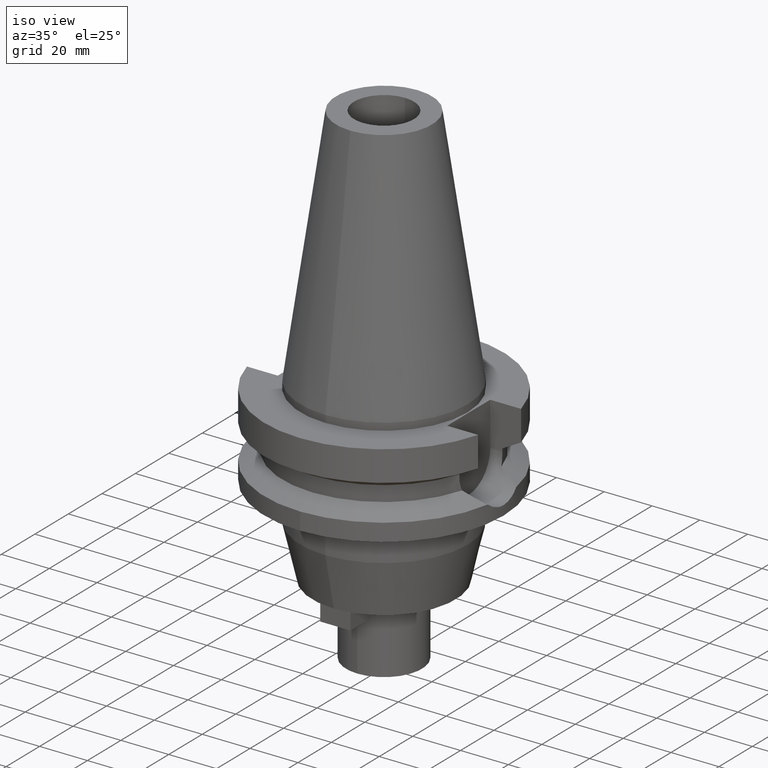
[diagram: clean part render]
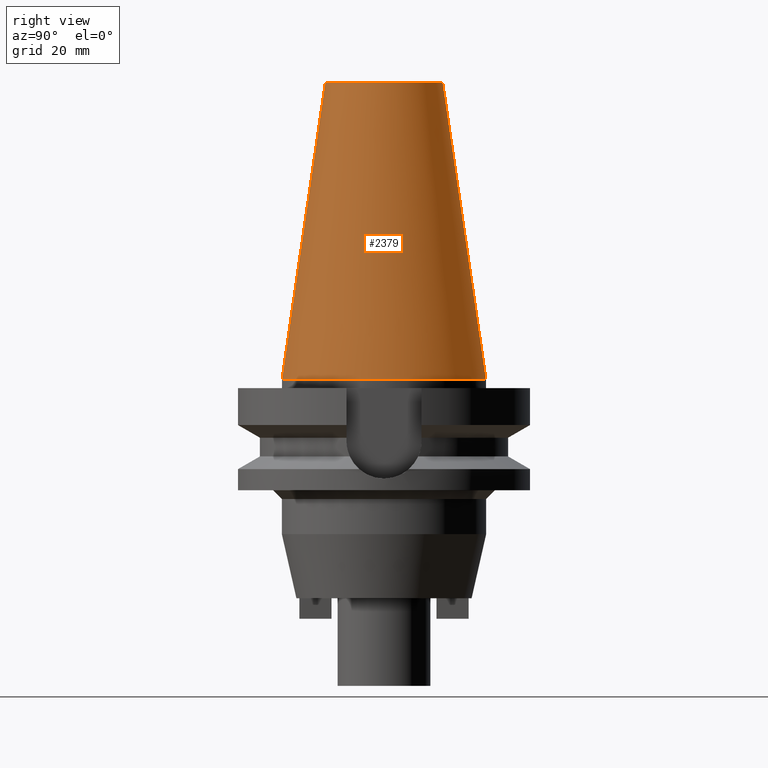
[diagram: tour spotlight — one face highlighted and labeled with its STEP entity id]
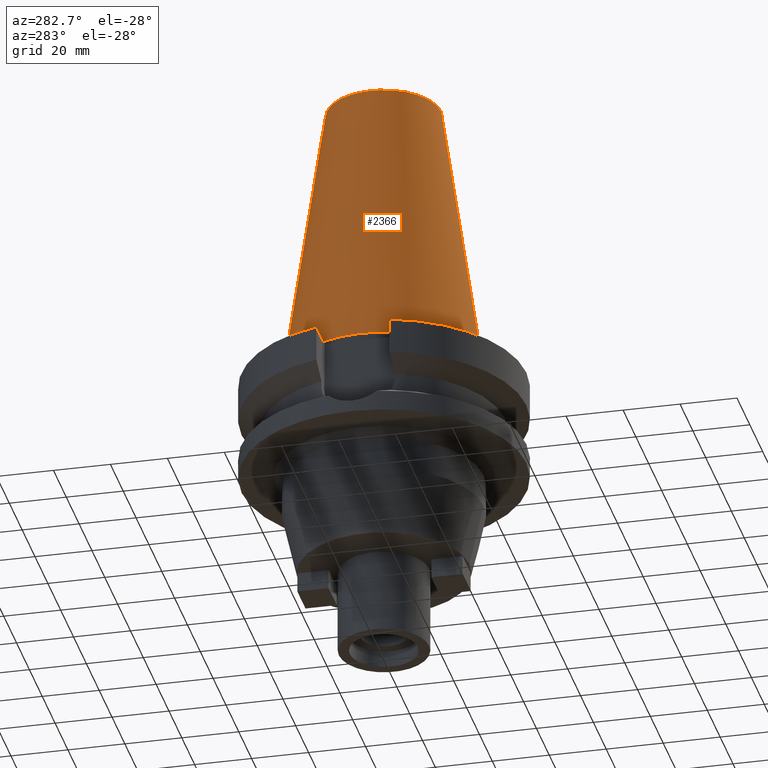
[diagram: tour spotlight — one face highlighted and labeled with its STEP entity id]
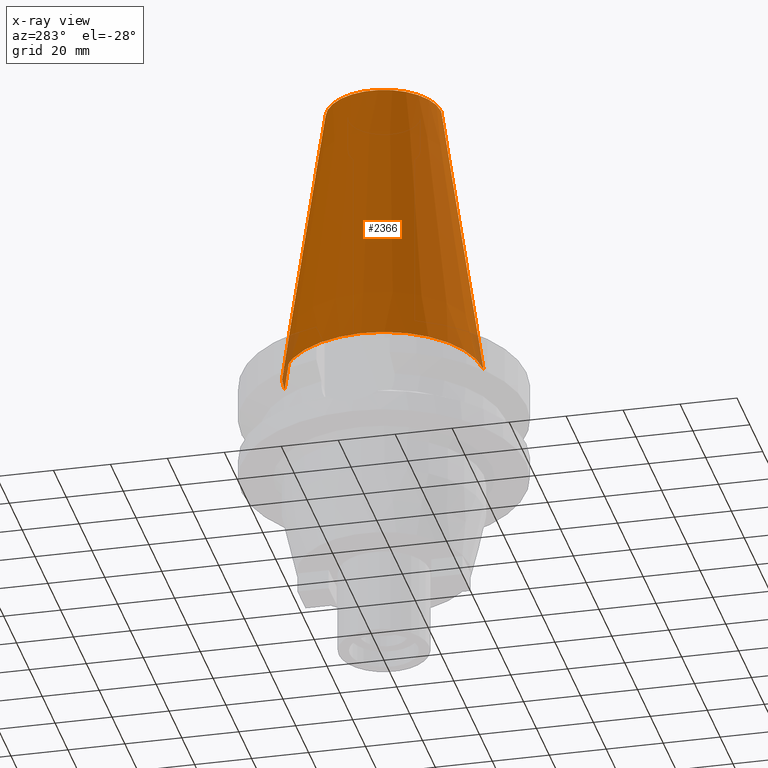
[diagram: x-ray of the same camera — body ghosted, this tour face saturated]
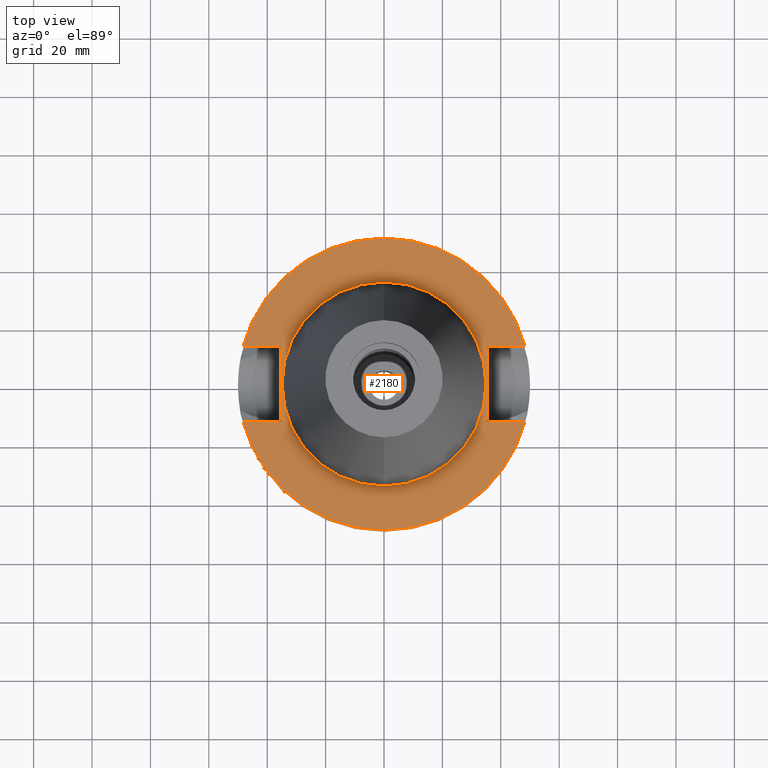
[diagram: tour spotlight — one face highlighted and labeled with its STEP entity id]
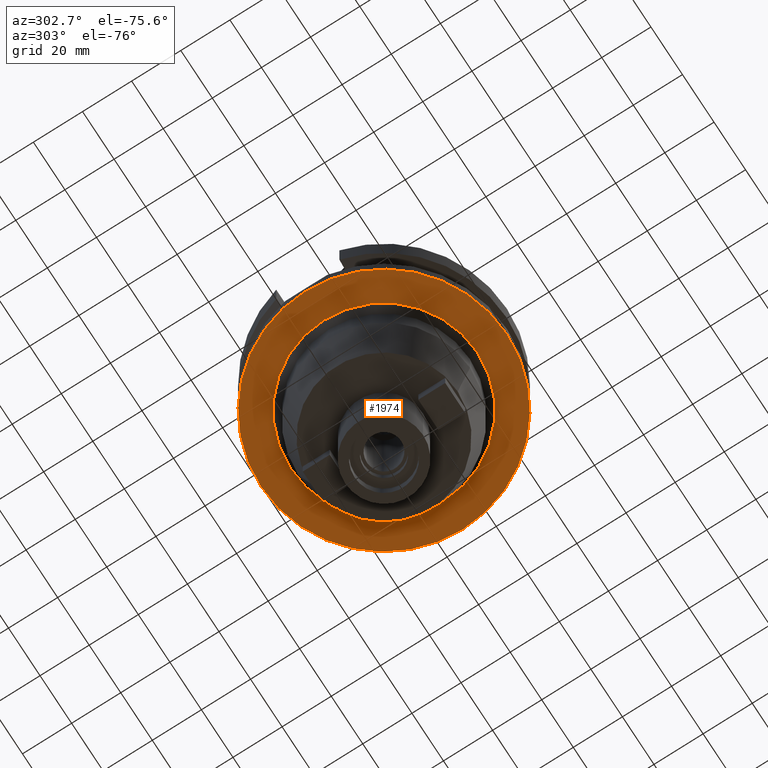
[diagram: tour spotlight — one face highlighted and labeled with its STEP entity id]
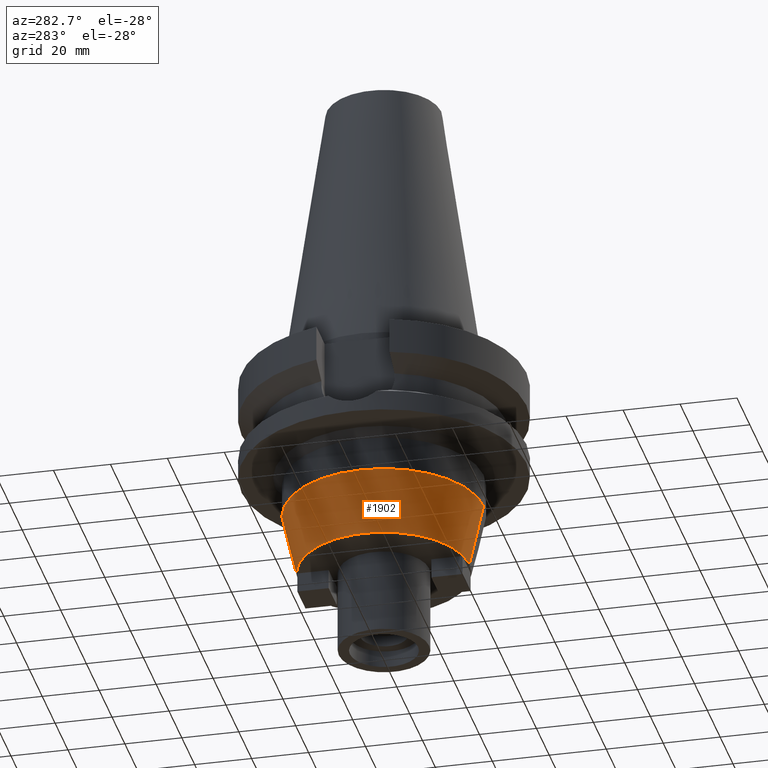
[diagram: tour spotlight — one face highlighted and labeled with its STEP entity id]
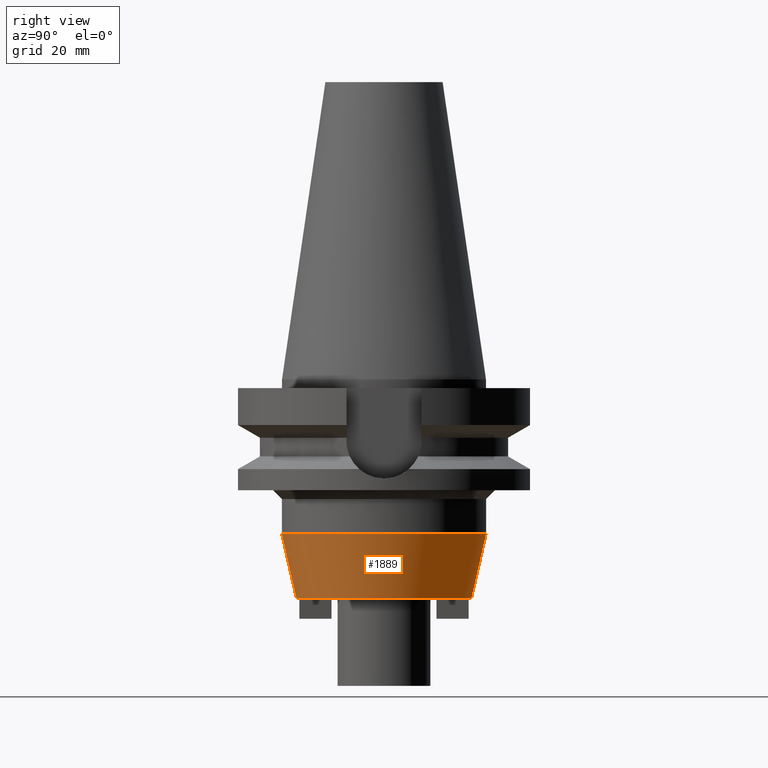
[diagram: tour spotlight — one face highlighted and labeled with its STEP entity id]
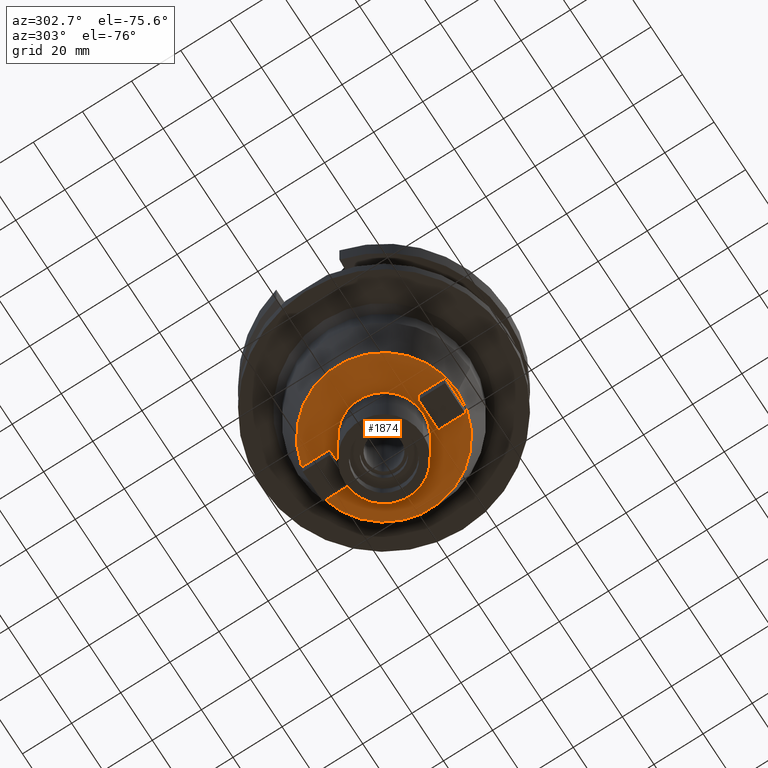
[diagram: tour spotlight — one face highlighted and labeled with its STEP entity id]
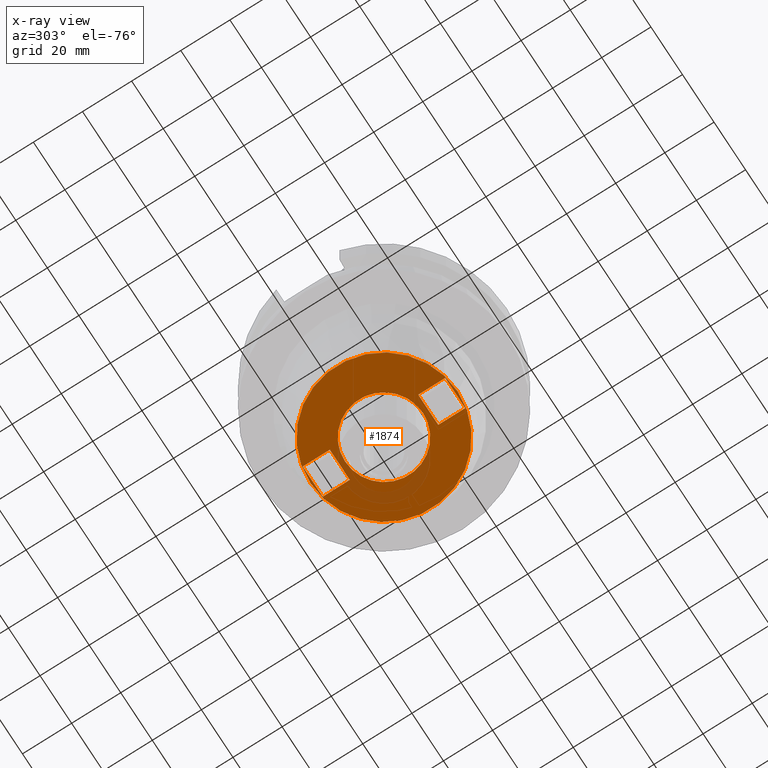
[diagram: x-ray of the same camera — body ghosted, this tour face saturated]
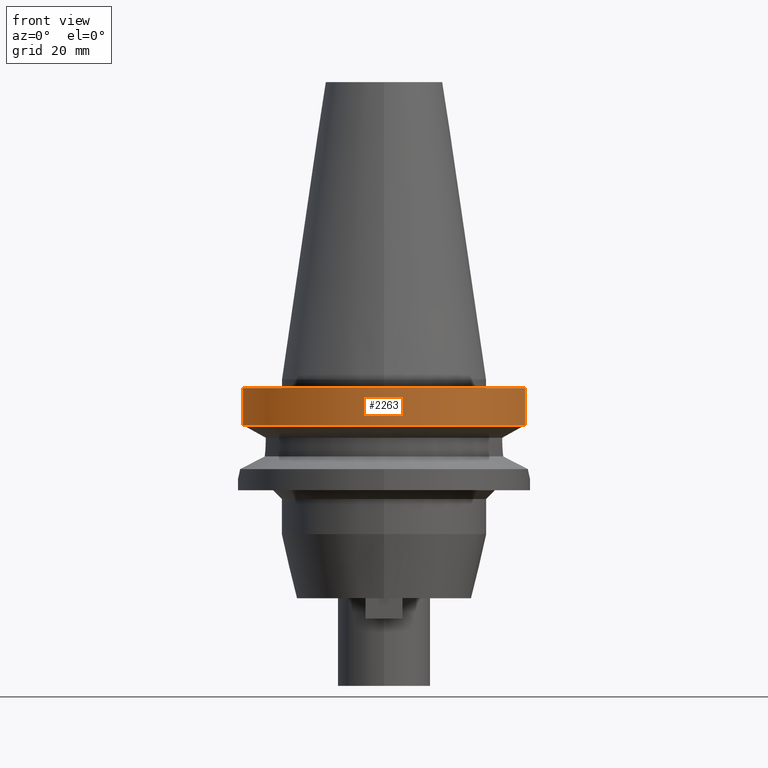
[diagram: tour spotlight — one face highlighted and labeled with its STEP entity id]
A machine part: a face-by-face anatomy tour. The part has 66 B-rep faces; the first image is the clean iso view, then the 8 largest visible faces are spotlighted one at a time (largest first), each with its STEP entity span.

Face 1 — right view, entity #2379. In plain terms, the highlighted conical surface has half-angle 8.297 deg.
Definition (entity closure, byte-faithful):
#1082=DIRECTION('',(0.E0,-1.443043893539E-1,-9.895333461856E-1));
#1083=VECTOR('',#1082,1.028767755957E2);
#1084=CARTESIAN_POINT('',(0.E0,-2.007942971896E1,1.018E2));
#1085=LINE('',#1084,#1083);
#1097=DIRECTION('',(0.E0,1.443043893539E-1,-9.895333461856E-1));
#1098=VECTOR('',#1097,1.028767755957E2);
#1099=CARTESIAN_POINT('',(0.E0,2.007942971896E1,1.018E2));
#1100=LINE('',#1099,#1098);
#1104=CARTESIAN_POINT('',(0.E0,0.E0,-5.115907697473E-13));
#1105=DIRECTION('',(0.E0,0.E0,-1.E0));
#1106=DIRECTION('',(0.E0,1.E0,0.E0));
#1107=AXIS2_PLACEMENT_3D('',#1104,#1105,#1106);
#1120=CARTESIAN_POINT('',(0.E0,0.E0,1.018E2));
#1121=DIRECTION('',(0.E0,0.E0,-1.E0));
#1122=DIRECTION('',(0.E0,1.E0,0.E0));
#1123=AXIS2_PLACEMENT_3D('',#1120,#1121,#1122);
#1457=CARTESIAN_POINT('',(0.E0,3.4925E1,-4.263256414561E-13));
#1458=VERTEX_POINT('',#1457);
#1459=CARTESIAN_POINT('',(0.E0,-3.4925E1,-4.263256414561E-13));
#1460=VERTEX_POINT('',#1459);
#1461=CARTESIAN_POINT('',(0.E0,2.007942971896E1,1.018E2));
#1462=VERTEX_POINT('',#1461);
#1463=CARTESIAN_POINT('',(0.E0,-2.007942971896E1,1.018E2));
#1464=VERTEX_POINT('',#1463);
#2367=CARTESIAN_POINT('',(0.E0,0.E0,5.09E1));
#2368=DIRECTION('',(0.E0,0.E0,-1.E0));
#2369=DIRECTION('',(0.E0,-1.E0,0.E0));
#2370=AXIS2_PLACEMENT_3D('',#2367,#2368,#2369);
#2371=CONICAL_SURFACE('',#2370,2.750221485948E1,8.297E0);
#2372=ORIENTED_EDGE('',*,*,#2357,.T.);
#2373=ORIENTED_EDGE('',*,*,#2334,.T.);
#2374=ORIENTED_EDGE('',*,*,#2361,.F.);
#2376=ORIENTED_EDGE('',*,*,#2375,.F.);
#2377=EDGE_LOOP('',(#2372,#2373,#2374,#2376));
#2378=FACE_OUTER_BOUND('',#2377,.F.);
#1108=CIRCLE('',#1107,3.4925E1);
#1124=CIRCLE('',#1123,2.007942971896E1);
#2334=EDGE_CURVE('',#1458,#1460,#1108,.T.);
#2357=EDGE_CURVE('',#1462,#1458,#1100,.T.);
#2361=EDGE_CURVE('',#1464,#1460,#1085,.T.);
#2375=EDGE_CURVE('',#1462,#1464,#1124,.T.);
#2379=ADVANCED_FACE('',(#2378),#2371,.T.);

Face 2 — auxiliary view, entity #2366. An x-ray twin of the same camera follows (body ghosted, this face saturated) — the face is partly hidden behind the body. In plain terms, the highlighted conical surface has half-angle 8.297 deg.
Definition (entity closure, byte-faithful):
#1082=DIRECTION('',(0.E0,-1.443043893539E-1,-9.895333461856E-1));
#1083=VECTOR('',#1082,1.028767755957E2);
#1084=CARTESIAN_POINT('',(0.E0,-2.007942971896E1,1.018E2));
#1085=LINE('',#1084,#1083);
#1089=CARTESIAN_POINT('',(0.E0,0.E0,-5.115907697473E-13));
#1090=DIRECTION('',(0.E0,0.E0,-1.E0));
#1091=DIRECTION('',(0.E0,-1.E0,0.E0));
#1092=AXIS2_PLACEMENT_3D('',#1089,#1090,#1091);
#1097=DIRECTION('',(0.E0,1.443043893539E-1,-9.895333461856E-1));
#1098=VECTOR('',#1097,1.028767755957E2);
#1099=CARTESIAN_POINT('',(0.E0,2.007942971896E1,1.018E2));
#1100=LINE('',#1099,#1098);
#1112=CARTESIAN_POINT('',(0.E0,0.E0,1.018E2));
#1113=DIRECTION('',(0.E0,0.E0,-1.E0));
#1114=DIRECTION('',(0.E0,-1.E0,0.E0));
#1115=AXIS2_PLACEMENT_3D('',#1112,#1113,#1114);
#1457=CARTESIAN_POINT('',(0.E0,3.4925E1,-4.263256414561E-13));
#1458=VERTEX_POINT('',#1457);
#1459=CARTESIAN_POINT('',(0.E0,-3.4925E1,-4.263256414561E-13));
#1460=VERTEX_POINT('',#1459);
#1461=CARTESIAN_POINT('',(0.E0,2.007942971896E1,1.018E2));
#1462=VERTEX_POINT('',#1461);
#1463=CARTESIAN_POINT('',(0.E0,-2.007942971896E1,1.018E2));
#1464=VERTEX_POINT('',#1463);
#2352=CARTESIAN_POINT('',(0.E0,0.E0,5.09E1));
#2353=DIRECTION('',(0.E0,0.E0,-1.E0));
#2354=DIRECTION('',(0.E0,-1.E0,0.E0));
#2355=AXIS2_PLACEMENT_3D('',#2352,#2353,#2354);
#2356=CONICAL_SURFACE('',#2355,2.750221485948E1,8.297E0);
#2358=ORIENTED_EDGE('',*,*,#2357,.F.);
#2360=ORIENTED_EDGE('',*,*,#2359,.F.);
#2362=ORIENTED_EDGE('',*,*,#2361,.T.);
#2363=ORIENTED_EDGE('',*,*,#2345,.T.);
#2364=EDGE_LOOP('',(#2358,#2360,#2362,#2363));
#2365=FACE_OUTER_BOUND('',#2364,.F.);
#1093=CIRCLE('',#1092,3.4925E1);
#1116=CIRCLE('',#1115,2.007942971896E1);
#2345=EDGE_CURVE('',#1460,#1458,#1093,.T.);
#2357=EDGE_CURVE('',#1462,#1458,#1100,.T.);
#2359=EDGE_CURVE('',#1464,#1462,#1116,.T.);
#2361=EDGE_CURVE('',#1464,#1460,#1085,.T.);
#2366=ADVANCED_FACE('',(#2365),#2356,.T.);

Face 3 — top view, entity #2180. In plain terms, the highlighted planar face has unit normal (0, 0, -1).
Definition (entity closure, byte-faithful):
#752=DIRECTION('',(1.E0,0.E0,0.E0));
#753=VECTOR('',#752,1.292057015392E1);
#754=CARTESIAN_POINT('',(3.54E1,1.285E1,-3.E0));
#755=LINE('',#754,#753);
#799=DIRECTION('',(0.E0,1.E0,0.E0));
#800=VECTOR('',#799,2.57E1);
#801=CARTESIAN_POINT('',(-3.54E1,-1.285E1,-3.E0));
#802=LINE('',#801,#800);
#806=DIRECTION('',(-1.E0,0.E0,0.E0));
#807=VECTOR('',#806,1.292057015392E1);
#808=CARTESIAN_POINT('',(-3.54E1,1.285E1,-3.E0));
#809=LINE('',#808,#807);
#813=CARTESIAN_POINT('',(0.E0,1.373318920564E-14,-3.E0));
#814=DIRECTION('',(0.E0,0.E0,-1.E0));
#815=DIRECTION('',(-9.664114030784E-1,2.57E-1,0.E0));
#816=AXIS2_PLACEMENT_3D('',#813,#814,#815);
#821=CARTESIAN_POINT('',(0.E0,1.373318920564E-14,-3.E0));
#822=DIRECTION('',(0.E0,0.E0,-1.E0));
#823=DIRECTION('',(0.E0,1.E0,0.E0));
#824=AXIS2_PLACEMENT_3D('',#821,#822,#823);
#829=DIRECTION('',(0.E0,-1.E0,0.E0));
#830=VECTOR('',#829,2.57E1);
#831=CARTESIAN_POINT('',(3.54E1,1.285E1,-3.E0));
#832=LINE('',#831,#830);
#836=DIRECTION('',(1.E0,0.E0,0.E0));
#837=VECTOR('',#836,1.292057015392E1);
#838=CARTESIAN_POINT('',(3.54E1,-1.285E1,-3.E0));
#839=LINE('',#838,#837);
#843=CARTESIAN_POINT('',(0.E0,1.373318920564E-14,-3.E0));
#844=DIRECTION('',(0.E0,0.E0,-1.E0));
#845=DIRECTION('',(9.664114030784E-1,-2.57E-1,0.E0));
#846=AXIS2_PLACEMENT_3D('',#843,#844,#845);
#851=CARTESIAN_POINT('',(0.E0,1.373318920564E-14,-3.E0));
#852=DIRECTION('',(0.E0,0.E0,-1.E0));
#853=DIRECTION('',(0.E0,-1.E0,0.E0));
#854=AXIS2_PLACEMENT_3D('',#851,#852,#853);
#859=CARTESIAN_POINT('',(0.E0,1.373318920564E-14,-3.E0));
#860=DIRECTION('',(0.E0,0.E0,1.E0));
#861=DIRECTION('',(0.E0,-1.E0,0.E0));
#862=AXIS2_PLACEMENT_3D('',#859,#860,#861);
#867=CARTESIAN_POINT('',(0.E0,1.373318920564E-14,-3.E0));
#868=DIRECTION('',(0.E0,0.E0,1.E0));
#869=DIRECTION('',(0.E0,1.E0,0.E0));
#870=AXIS2_PLACEMENT_3D('',#867,#868,#869);
#905=DIRECTION('',(-1.E0,0.E0,0.E0));
#906=VECTOR('',#905,1.292057015392E1);
#907=CARTESIAN_POINT('',(-3.54E1,-1.285E1,-3.E0));
#908=LINE('',#907,#906);
#1431=CARTESIAN_POINT('',(-3.54E1,-1.285E1,-3.E0));
#1432=VERTEX_POINT('',#1431);
#1433=CARTESIAN_POINT('',(-4.832057015392E1,-1.285E1,-3.E0));
#1434=VERTEX_POINT('',#1433);
#1437=CARTESIAN_POINT('',(-3.54E1,1.285E1,-3.E0));
#1438=VERTEX_POINT('',#1437);
#1439=CARTESIAN_POINT('',(-4.832057015392E1,1.285E1,-3.E0));
#1440=VERTEX_POINT('',#1439);
#1441=CARTESIAN_POINT('',(-1.065814103640E-14,5.E1,-3.E0));
#1442=CARTESIAN_POINT('',(4.832057015392E1,1.285E1,-3.E0));
#1443=VERTEX_POINT('',#1441);
#1444=VERTEX_POINT('',#1442);
#1445=CARTESIAN_POINT('',(3.54E1,1.285E1,-3.E0));
#1446=VERTEX_POINT('',#1445);
#1447=CARTESIAN_POINT('',(3.54E1,-1.285E1,-3.E0));
#1448=VERTEX_POINT('',#1447);
#1449=CARTESIAN_POINT('',(4.832057015392E1,-1.285E1,-3.E0));
#1450=VERTEX_POINT('',#1449);
#1451=CARTESIAN_POINT('',(1.065814103640E-14,-5.E1,-3.E0));
#1452=VERTEX_POINT('',#1451);
#1453=CARTESIAN_POINT('',(0.E0,-3.4925E1,-3.E0));
#1454=CARTESIAN_POINT('',(0.E0,3.4925E1,-3.E0));
#1455=VERTEX_POINT('',#1453);
#1456=VERTEX_POINT('',#1454);
#2149=CARTESIAN_POINT('',(0.E0,0.E0,-3.E0));
#2150=DIRECTION('',(0.E0,0.E0,-1.E0));
#2151=DIRECTION('',(0.E0,-1.E0,0.E0));
#2152=AXIS2_PLACEMENT_3D('',#2149,#2150,#2151);
#2153=PLANE('',#2152);
#2155=ORIENTED_EDGE('',*,*,#2154,.T.);
#2157=ORIENTED_EDGE('',*,*,#2156,.T.);
#2159=ORIENTED_EDGE('',*,*,#2158,.T.);
#2161=ORIENTED_EDGE('',*,*,#2160,.T.);
#2162=ORIENTED_EDGE('',*,*,#2125,.F.);
#2163=ORIENTED_EDGE('',*,*,#2139,.T.);
#2165=ORIENTED_EDGE('',*,*,#2164,.T.);
#2167=ORIENTED_EDGE('',*,*,#2166,.T.);
#2169=ORIENTED_EDGE('',*,*,#2168,.T.);
#2171=ORIENTED_EDGE('',*,*,#2170,.F.);
#2172=EDGE_LOOP('',(#2155,#2157,#2159,#2161,#2162,#2163,#2165,#2167,#2169,
#2171));
#2173=FACE_OUTER_BOUND('',#2172,.F.);
#2175=ORIENTED_EDGE('',*,*,#2174,.T.);
#2177=ORIENTED_EDGE('',*,*,#2176,.T.);
#2178=EDGE_LOOP('',(#2175,#2177));
#2179=FACE_BOUND('',#2178,.F.);
#817=CIRCLE('',#816,5.E1);
#825=CIRCLE('',#824,5.E1);
#847=CIRCLE('',#846,5.E1);
#855=CIRCLE('',#854,5.E1);
#863=CIRCLE('',#862,3.4925E1);
#871=CIRCLE('',#870,3.4925E1);
#2125=EDGE_CURVE('',#1446,#1444,#755,.T.);
#2139=EDGE_CURVE('',#1446,#1448,#832,.T.);
#2154=EDGE_CURVE('',#1432,#1438,#802,.T.);
#2156=EDGE_CURVE('',#1438,#1440,#809,.T.);
#2158=EDGE_CURVE('',#1440,#1443,#817,.T.);
#2160=EDGE_CURVE('',#1443,#1444,#825,.T.);
#2164=EDGE_CURVE('',#1448,#1450,#839,.T.);
#2166=EDGE_CURVE('',#1450,#1452,#847,.T.);
#2168=EDGE_CURVE('',#1452,#1434,#855,.T.);
#2170=EDGE_CURVE('',#1432,#1434,#908,.T.);
#2174=EDGE_CURVE('',#1455,#1456,#863,.T.);
#2176=EDGE_CURVE('',#1456,#1455,#871,.T.);
#2180=ADVANCED_FACE('',(#2173,#2179),#2153,.F.);

Face 4 — auxiliary view, entity #1974. In plain terms, the highlighted planar face has unit normal (0, 0, -1).
Definition (entity closure, byte-faithful):
#502=CARTESIAN_POINT('',(0.E0,1.373318920564E-14,-3.8E1));
#503=DIRECTION('',(0.E0,0.E0,1.E0));
#504=DIRECTION('',(0.E0,-1.E0,0.E0));
#505=AXIS2_PLACEMENT_3D('',#502,#503,#504);
#510=CARTESIAN_POINT('',(0.E0,1.373318920564E-14,-3.8E1));
#511=DIRECTION('',(0.E0,0.E0,1.E0));
#512=DIRECTION('',(0.E0,1.E0,0.E0));
#513=AXIS2_PLACEMENT_3D('',#510,#511,#512);
#518=CARTESIAN_POINT('',(0.E0,0.E0,-3.8E1));
#519=DIRECTION('',(0.E0,0.E0,-1.E0));
#520=DIRECTION('',(0.E0,-1.E0,0.E0));
#521=AXIS2_PLACEMENT_3D('',#518,#519,#520);
#526=CARTESIAN_POINT('',(0.E0,0.E0,-3.8E1));
#527=DIRECTION('',(0.E0,0.E0,-1.E0));
#528=DIRECTION('',(0.E0,1.E0,0.E0));
#529=AXIS2_PLACEMENT_3D('',#526,#527,#528);
#1376=CARTESIAN_POINT('',(0.E0,3.8E1,-3.8E1));
#1377=VERTEX_POINT('',#1376);
#1378=CARTESIAN_POINT('',(0.E0,-3.8E1,-3.8E1));
#1379=VERTEX_POINT('',#1378);
#1380=CARTESIAN_POINT('',(0.E0,-5.E1,-3.8E1));
#1381=CARTESIAN_POINT('',(0.E0,5.E1,-3.8E1));
#1382=VERTEX_POINT('',#1380);
#1383=VERTEX_POINT('',#1381);
#1959=CARTESIAN_POINT('',(0.E0,0.E0,-3.8E1));
#1960=DIRECTION('',(0.E0,0.E0,-1.E0));
#1961=DIRECTION('',(0.E0,-1.E0,0.E0));
#1962=AXIS2_PLACEMENT_3D('',#1959,#1960,#1961);
#1963=PLANE('',#1962);
#1965=ORIENTED_EDGE('',*,*,#1964,.T.);
#1967=ORIENTED_EDGE('',*,*,#1966,.T.);
#1968=EDGE_LOOP('',(#1965,#1967));
#1969=FACE_OUTER_BOUND('',#1968,.F.);
#1970=ORIENTED_EDGE('',*,*,#1952,.T.);
#1971=ORIENTED_EDGE('',*,*,#1941,.T.);
#1972=EDGE_LOOP('',(#1970,#1971));
#1973=FACE_BOUND('',#1972,.F.);
#506=CIRCLE('',#505,5.E1);
#514=CIRCLE('',#513,5.E1);
#522=CIRCLE('',#521,3.8E1);
#530=CIRCLE('',#529,3.8E1);
#1941=EDGE_CURVE('',#1377,#1379,#530,.T.);
#1952=EDGE_CURVE('',#1379,#1377,#522,.T.);
#1964=EDGE_CURVE('',#1382,#1383,#506,.T.);
#1966=EDGE_CURVE('',#1383,#1382,#514,.T.);
#1974=ADVANCED_FACE('',(#1969,#1973),#1963,.T.);

Face 5 — auxiliary view, entity #1902. In plain terms, the highlighted conical surface has half-angle 12.804 deg.
Definition (entity closure, byte-faithful):
#376=CARTESIAN_POINT('',(0.E0,0.E0,-7.5E1));
#377=DIRECTION('',(0.E0,0.E0,1.E0));
#378=DIRECTION('',(0.E0,1.E0,0.E0));
#379=AXIS2_PLACEMENT_3D('',#376,#377,#378);
#428=DIRECTION('',(0.E0,-2.216211035890E-1,-9.751328557915E-1));
#429=VECTOR('',#428,2.256102834536E1);
#430=CARTESIAN_POINT('',(0.E0,3.5E1,-5.3E1));
#431=LINE('',#430,#429);
#443=CARTESIAN_POINT('',(0.E0,0.E0,-5.3E1));
#444=DIRECTION('',(0.E0,0.E0,1.E0));
#445=DIRECTION('',(0.E0,1.E0,0.E0));
#446=AXIS2_PLACEMENT_3D('',#443,#444,#445);
#451=DIRECTION('',(0.E0,2.216211035890E-1,-9.751328557915E-1));
#452=VECTOR('',#451,2.256102834536E1);
#453=CARTESIAN_POINT('',(0.E0,-3.5E1,-5.3E1));
#454=LINE('',#453,#452);
#1348=CARTESIAN_POINT('',(0.E0,-3.E1,-7.5E1));
#1349=CARTESIAN_POINT('',(0.E0,3.E1,-7.5E1));
#1350=VERTEX_POINT('',#1348);
#1351=VERTEX_POINT('',#1349);
#1368=CARTESIAN_POINT('',(0.E0,3.5E1,-5.3E1));
#1369=VERTEX_POINT('',#1368);
#1370=CARTESIAN_POINT('',(0.E0,-3.5E1,-5.3E1));
#1371=VERTEX_POINT('',#1370);
#1890=CARTESIAN_POINT('',(0.E0,0.E0,-6.4E1));
#1891=DIRECTION('',(0.E0,0.E0,1.E0));
#1892=DIRECTION('',(0.E0,1.E0,0.E0));
#1893=AXIS2_PLACEMENT_3D('',#1890,#1891,#1892);
#1894=CONICAL_SURFACE('',#1893,3.25E1,1.280426606529E1);
#1895=ORIENTED_EDGE('',*,*,#1880,.F.);
#1897=ORIENTED_EDGE('',*,*,#1896,.T.);
#1898=ORIENTED_EDGE('',*,*,#1883,.T.);
#1899=ORIENTED_EDGE('',*,*,#1846,.F.);
#1900=EDGE_LOOP('',(#1895,#1897,#1898,#1899));
#1901=FACE_OUTER_BOUND('',#1900,.F.);
#380=CIRCLE('',#379,3.E1);
#447=CIRCLE('',#446,3.5E1);
#1846=EDGE_CURVE('',#1351,#1350,#380,.T.);
#1880=EDGE_CURVE('',#1369,#1351,#431,.T.);
#1883=EDGE_CURVE('',#1371,#1350,#454,.T.);
#1896=EDGE_CURVE('',#1369,#1371,#447,.T.);
#1902=ADVANCED_FACE('',(#1901),#1894,.T.);

Face 6 — right view, entity #1889. In plain terms, the highlighted conical surface has half-angle 12.804 deg.
Definition (entity closure, byte-faithful):
#368=CARTESIAN_POINT('',(0.E0,0.E0,-7.5E1));
#369=DIRECTION('',(0.E0,0.E0,1.E0));
#370=DIRECTION('',(0.E0,-1.E0,0.E0));
#371=AXIS2_PLACEMENT_3D('',#368,#369,#370);
#428=DIRECTION('',(0.E0,-2.216211035890E-1,-9.751328557915E-1));
#429=VECTOR('',#428,2.256102834536E1);
#430=CARTESIAN_POINT('',(0.E0,3.5E1,-5.3E1));
#431=LINE('',#430,#429);
#435=CARTESIAN_POINT('',(0.E0,0.E0,-5.3E1));
#436=DIRECTION('',(0.E0,0.E0,1.E0));
#437=DIRECTION('',(0.E0,-1.E0,0.E0));
#438=AXIS2_PLACEMENT_3D('',#435,#436,#437);
#451=DIRECTION('',(0.E0,2.216211035890E-1,-9.751328557915E-1));
#452=VECTOR('',#451,2.256102834536E1);
#453=CARTESIAN_POINT('',(0.E0,-3.5E1,-5.3E1));
#454=LINE('',#453,#452);
#1348=CARTESIAN_POINT('',(0.E0,-3.E1,-7.5E1));
#1349=CARTESIAN_POINT('',(0.E0,3.E1,-7.5E1));
#1350=VERTEX_POINT('',#1348);
#1351=VERTEX_POINT('',#1349);
#1368=CARTESIAN_POINT('',(0.E0,3.5E1,-5.3E1));
#1369=VERTEX_POINT('',#1368);
#1370=CARTESIAN_POINT('',(0.E0,-3.5E1,-5.3E1));
#1371=VERTEX_POINT('',#1370);
#1875=CARTESIAN_POINT('',(0.E0,0.E0,-6.4E1));
#1876=DIRECTION('',(0.E0,0.E0,1.E0));
#1877=DIRECTION('',(0.E0,1.E0,0.E0));
#1878=AXIS2_PLACEMENT_3D('',#1875,#1876,#1877);
#1879=CONICAL_SURFACE('',#1878,3.25E1,1.280426606529E1);
#1881=ORIENTED_EDGE('',*,*,#1880,.T.);
#1882=ORIENTED_EDGE('',*,*,#1844,.F.);
#1884=ORIENTED_EDGE('',*,*,#1883,.F.);
#1886=ORIENTED_EDGE('',*,*,#1885,.T.);
#1887=EDGE_LOOP('',(#1881,#1882,#1884,#1886));
#1888=FACE_OUTER_BOUND('',#1887,.F.);
#372=CIRCLE('',#371,3.E1);
#439=CIRCLE('',#438,3.5E1);
#1844=EDGE_CURVE('',#1350,#1351,#372,.T.);
#1880=EDGE_CURVE('',#1369,#1351,#431,.T.);
#1883=EDGE_CURVE('',#1371,#1350,#454,.T.);
#1885=EDGE_CURVE('',#1371,#1369,#439,.T.);
#1889=ADVANCED_FACE('',(#1888),#1879,.T.);

Face 7 — auxiliary view, entity #1874. An x-ray twin of the same camera follows (body ghosted, this face saturated) — the face is partly hidden behind the body. In plain terms, the highlighted planar face has unit normal (0, 0, -1).
Definition (entity closure, byte-faithful):
#368=CARTESIAN_POINT('',(0.E0,0.E0,-7.5E1));
#369=DIRECTION('',(0.E0,0.E0,1.E0));
#370=DIRECTION('',(0.E0,-1.E0,0.E0));
#371=AXIS2_PLACEMENT_3D('',#368,#369,#370);
#376=CARTESIAN_POINT('',(0.E0,0.E0,-7.5E1));
#377=DIRECTION('',(0.E0,0.E0,1.E0));
#378=DIRECTION('',(0.E0,1.E0,0.E0));
#379=AXIS2_PLACEMENT_3D('',#376,#377,#378);
#384=CARTESIAN_POINT('',(0.E0,1.373318920564E-14,-7.5E1));
#385=DIRECTION('',(0.E0,0.E0,-1.E0));
#386=DIRECTION('',(0.E0,-1.E0,0.E0));
#387=AXIS2_PLACEMENT_3D('',#384,#385,#386);
#392=CARTESIAN_POINT('',(0.E0,1.373318920564E-14,-7.5E1));
#393=DIRECTION('',(0.E0,0.E0,-1.E0));
#394=DIRECTION('',(0.E0,1.E0,0.E0));
#395=AXIS2_PLACEMENT_3D('',#392,#393,#394);
#400=DIRECTION('',(0.E0,1.E0,0.E0));
#401=VECTOR('',#400,1.1E1);
#402=CARTESIAN_POINT('',(-6.35E0,1.8E1,-7.5E1));
#403=LINE('',#402,#401);
#407=DIRECTION('',(-1.E0,0.E0,0.E0));
#408=VECTOR('',#407,1.27E1);
#409=CARTESIAN_POINT('',(6.35E0,1.8E1,-7.5E1));
#410=LINE('',#409,#408);
#414=DIRECTION('',(0.E0,-1.E0,0.E0));
#415=VECTOR('',#414,1.1E1);
#416=CARTESIAN_POINT('',(6.35E0,-1.8E1,-7.5E1));
#417=LINE('',#416,#415);
#421=DIRECTION('',(1.E0,0.E0,0.E0));
#422=VECTOR('',#421,1.27E1);
#423=CARTESIAN_POINT('',(-6.35E0,-1.8E1,-7.5E1));
#424=LINE('',#423,#422);
#1158=DIRECTION('',(0.E0,1.E0,0.E0));
#1159=VECTOR('',#1158,1.1E1);
#1160=CARTESIAN_POINT('',(6.35E0,1.8E1,-7.5E1));
#1161=LINE('',#1160,#1159);
#1186=DIRECTION('',(-1.E0,0.E0,0.E0));
#1187=VECTOR('',#1186,1.27E1);
#1188=CARTESIAN_POINT('',(6.35E0,2.9E1,-7.5E1));
#1189=LINE('',#1188,#1187);
#1228=DIRECTION('',(0.E0,-1.E0,0.E0));
#1229=VECTOR('',#1228,1.1E1);
#1230=CARTESIAN_POINT('',(-6.35E0,-1.8E1,-7.5E1));
#1231=LINE('',#1230,#1229);
#1256=DIRECTION('',(1.E0,0.E0,0.E0));
#1257=VECTOR('',#1256,1.27E1);
#1258=CARTESIAN_POINT('',(-6.35E0,-2.9E1,-7.5E1));
#1259=LINE('',#1258,#1257);
#1344=CARTESIAN_POINT('',(0.E0,1.5875E1,-7.5E1));
#1345=VERTEX_POINT('',#1344);
#1346=CARTESIAN_POINT('',(0.E0,-1.5875E1,-7.5E1));
#1347=VERTEX_POINT('',#1346);
#1348=CARTESIAN_POINT('',(0.E0,-3.E1,-7.5E1));
#1349=CARTESIAN_POINT('',(0.E0,3.E1,-7.5E1));
#1350=VERTEX_POINT('',#1348);
#1351=VERTEX_POINT('',#1349);
#1352=CARTESIAN_POINT('',(-6.35E0,1.8E1,-7.5E1));
#1353=CARTESIAN_POINT('',(-6.35E0,2.9E1,-7.5E1));
#1354=VERTEX_POINT('',#1352);
#1355=VERTEX_POINT('',#1353);
#1356=CARTESIAN_POINT('',(6.35E0,2.9E1,-7.5E1));
#1357=VERTEX_POINT('',#1356);
#1358=CARTESIAN_POINT('',(6.35E0,1.8E1,-7.5E1));
#1359=VERTEX_POINT('',#1358);
#1360=CARTESIAN_POINT('',(6.35E0,-1.8E1,-7.5E1));
#1361=CARTESIAN_POINT('',(6.35E0,-2.9E1,-7.5E1));
#1362=VERTEX_POINT('',#1360);
#1363=VERTEX_POINT('',#1361);
#1364=CARTESIAN_POINT('',(-6.35E0,-2.9E1,-7.5E1));
#1365=VERTEX_POINT('',#1364);
#1366=CARTESIAN_POINT('',(-6.35E0,-1.8E1,-7.5E1));
#1367=VERTEX_POINT('',#1366);
#1839=CARTESIAN_POINT('',(0.E0,0.E0,-7.5E1));
#1840=DIRECTION('',(0.E0,0.E0,-1.E0));
#1841=DIRECTION('',(0.E0,-1.E0,0.E0));
#1842=AXIS2_PLACEMENT_3D('',#1839,#1840,#1841);
#1843=PLANE('',#1842);
#1845=ORIENTED_EDGE('',*,*,#1844,.T.);
#1847=ORIENTED_EDGE('',*,*,#1846,.T.);
#1848=EDGE_LOOP('',(#1845,#1847));
#1849=FACE_OUTER_BOUND('',#1848,.F.);
#1850=ORIENTED_EDGE('',*,*,#1832,.T.);
#1851=ORIENTED_EDGE('',*,*,#1821,.T.);
#1852=EDGE_LOOP('',(#1850,#1851));
#1853=FACE_BOUND('',#1852,.F.);
#1855=ORIENTED_EDGE('',*,*,#1854,.T.);
#1857=ORIENTED_EDGE('',*,*,#1856,.F.);
#1859=ORIENTED_EDGE('',*,*,#1858,.F.);
#1861=ORIENTED_EDGE('',*,*,#1860,.T.);
#1862=EDGE_LOOP('',(#1855,#1857,#1859,#1861));
#1863=FACE_BOUND('',#1862,.F.);
#1865=ORIENTED_EDGE('',*,*,#1864,.T.);
#1867=ORIENTED_EDGE('',*,*,#1866,.F.);
#1869=ORIENTED_EDGE('',*,*,#1868,.F.);
#1871=ORIENTED_EDGE('',*,*,#1870,.T.);
#1872=EDGE_LOOP('',(#1865,#1867,#1869,#1871));
#1873=FACE_BOUND('',#1872,.F.);
#372=CIRCLE('',#371,3.E1);
#380=CIRCLE('',#379,3.E1);
#388=CIRCLE('',#387,1.5875E1);
#396=CIRCLE('',#395,1.5875E1);
#1821=EDGE_CURVE('',#1345,#1347,#396,.T.);
#1832=EDGE_CURVE('',#1347,#1345,#388,.T.);
#1844=EDGE_CURVE('',#1350,#1351,#372,.T.);
#1846=EDGE_CURVE('',#1351,#1350,#380,.T.);
#1854=EDGE_CURVE('',#1354,#1355,#403,.T.);
#1856=EDGE_CURVE('',#1357,#1355,#1189,.T.);
#1858=EDGE_CURVE('',#1359,#1357,#1161,.T.);
#1860=EDGE_CURVE('',#1359,#1354,#410,.T.);
#1864=EDGE_CURVE('',#1362,#1363,#417,.T.);
#1866=EDGE_CURVE('',#1365,#1363,#1259,.T.);
#1868=EDGE_CURVE('',#1367,#1365,#1231,.T.);
#1870=EDGE_CURVE('',#1367,#1362,#424,.T.);
#1874=ADVANCED_FACE('',(#1849,#1853,#1863,#1873),#1843,.T.);

Face 8 — front view, entity #2263. In plain terms, the highlighted cylindrical surface (partial cylindrical patch) has radius 50 mm, axis along (0, 0, -1).
Definition (entity closure, byte-faithful):
#843=CARTESIAN_POINT('',(0.E0,1.373318920564E-14,-3.E0));
#844=DIRECTION('',(0.E0,0.E0,-1.E0));
#845=DIRECTION('',(9.664114030784E-1,-2.57E-1,0.E0));
#846=AXIS2_PLACEMENT_3D('',#843,#844,#845);
#851=CARTESIAN_POINT('',(0.E0,1.373318920564E-14,-3.E0));
#852=DIRECTION('',(0.E0,0.E0,-1.E0));
#853=DIRECTION('',(0.E0,-1.E0,0.E0));
#854=AXIS2_PLACEMENT_3D('',#851,#852,#853);
#956=CARTESIAN_POINT('',(0.E0,0.E0,-1.566269223573E1));
#957=DIRECTION('',(0.E0,0.E0,1.E0));
#958=DIRECTION('',(-9.664114030784E-1,-2.57E-1,0.E0));
#959=AXIS2_PLACEMENT_3D('',#956,#957,#958);
#964=CARTESIAN_POINT('',(0.E0,0.E0,-1.566269223573E1));
#965=DIRECTION('',(0.E0,0.E0,1.E0));
#966=DIRECTION('',(0.E0,-1.E0,0.E0));
#967=AXIS2_PLACEMENT_3D('',#964,#965,#966);
#988=DIRECTION('',(-8.092424482890E-8,3.043037443150E-7,1.E0));
#989=VECTOR('',#988,1.266265771825E1);
#990=CARTESIAN_POINT('',(-4.832056912920E1,-1.285000385329E1,
-1.566265771824E1));
#991=LINE('',#990,#989);
#995=DIRECTION('',(-8.090218160441E-8,-3.042207788417E-7,-1.E0));
#996=VECTOR('',#995,1.266265772766E1);
#997=CARTESIAN_POINT('',(4.832057015392E1,-1.285E1,-3.E0));
#998=LINE('',#997,#996);
#1433=CARTESIAN_POINT('',(-4.832057015392E1,-1.285E1,-3.E0));
#1434=VERTEX_POINT('',#1433);
#1435=CARTESIAN_POINT('',(-4.832056912920E1,-1.285000385329E1,
-1.566265771824E1));
#1436=VERTEX_POINT('',#1435);
#1449=CARTESIAN_POINT('',(4.832057015392E1,-1.285E1,-3.E0));
#1450=VERTEX_POINT('',#1449);
#1451=CARTESIAN_POINT('',(1.065814103640E-14,-5.E1,-3.E0));
#1452=VERTEX_POINT('',#1451);
#1466=CARTESIAN_POINT('',(0.E0,-5.E1,-1.566269223573E1));
#1467=CARTESIAN_POINT('',(4.832057015392E1,-1.285E1,-1.566269223573E1));
#1468=VERTEX_POINT('',#1466);
#1469=VERTEX_POINT('',#1467);
#2249=CARTESIAN_POINT('',(0.E0,1.373318920564E-14,1.1214E2));
#2250=DIRECTION('',(0.E0,0.E0,-1.E0));
#2251=DIRECTION('',(0.E0,-1.E0,0.E0));
#2252=AXIS2_PLACEMENT_3D('',#2249,#2250,#2251);
#2253=CYLINDRICAL_SURFACE('',#2252,5.E1);
#2254=ORIENTED_EDGE('',*,*,#2206,.T.);
#2255=ORIENTED_EDGE('',*,*,#2168,.F.);
#2256=ORIENTED_EDGE('',*,*,#2166,.F.);
#2258=ORIENTED_EDGE('',*,*,#2257,.T.);
#2259=ORIENTED_EDGE('',*,*,#2240,.F.);
#2260=ORIENTED_EDGE('',*,*,#2238,.F.);
#2261=EDGE_LOOP('',(#2254,#2255,#2256,#2258,#2259,#2260));
#2262=FACE_OUTER_BOUND('',#2261,.F.);
#847=CIRCLE('',#846,5.E1);
#855=CIRCLE('',#854,5.E1);
#960=CIRCLE('',#959,5.E1);
#968=CIRCLE('',#967,5.E1);
#2166=EDGE_CURVE('',#1450,#1452,#847,.T.);
#2168=EDGE_CURVE('',#1452,#1434,#855,.T.);
#2206=EDGE_CURVE('',#1436,#1434,#991,.T.);
#2238=EDGE_CURVE('',#1436,#1468,#960,.T.);
#2240=EDGE_CURVE('',#1468,#1469,#968,.T.);
#2257=EDGE_CURVE('',#1450,#1469,#998,.T.);
#2263=ADVANCED_FACE('',(#2262),#2253,.T.);